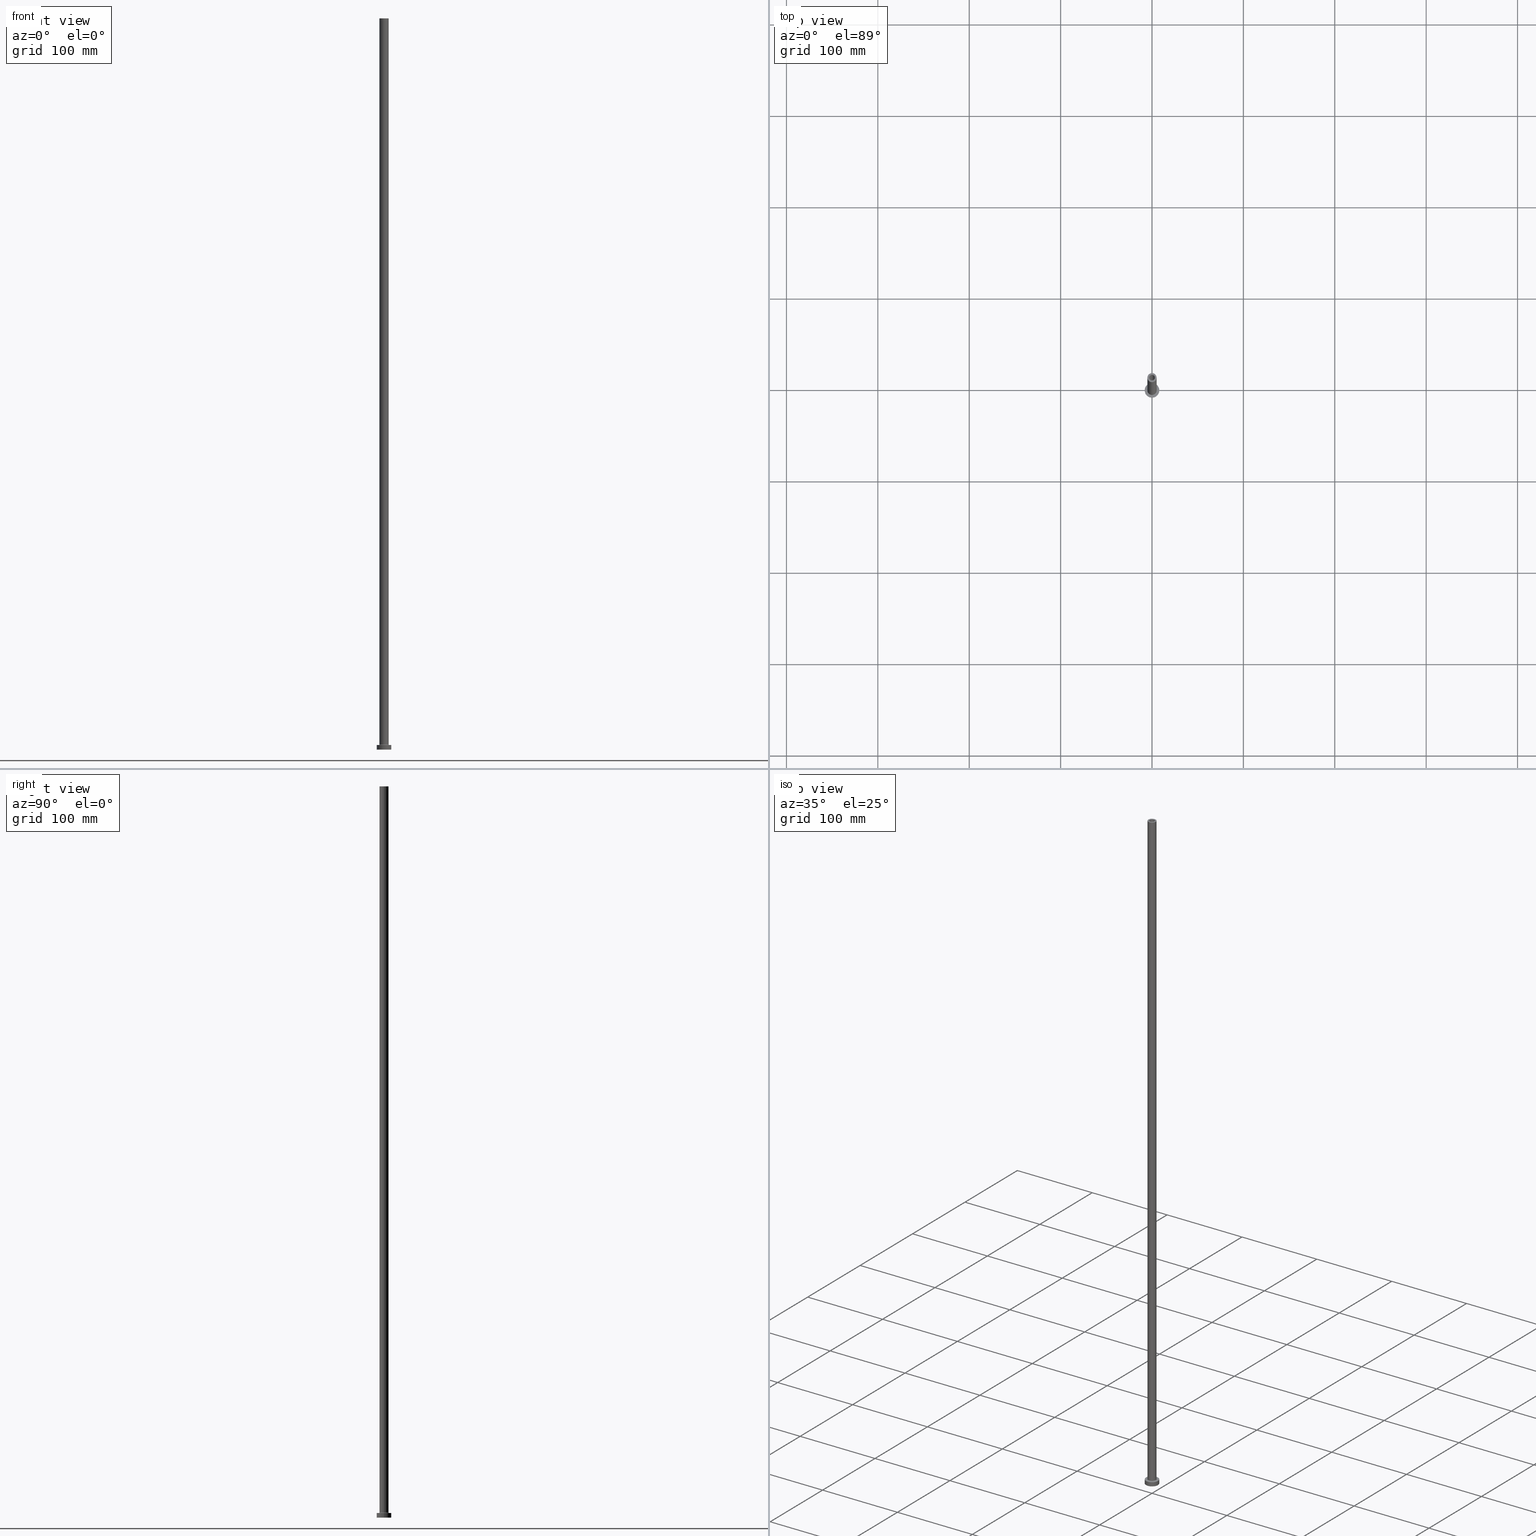
[diagram: canonical four-view strip — front | top / right | iso, engineering-drawing reading convention]
A machine part, canonical four-view strip (front | top / right | iso — engineering-drawing reading convention). The complete STEP part file that produces these views, byte-faithful:
ISO-10303-21;
HEADER;
FILE_DESCRIPTION (( 'STEP AP203' ),
    '1' );
FILE_NAME ('4e2d.STEP',
    '2023-02-13T14:28:47',
    ( '' ),
    ( '' ),
    'SwSTEP 2.0',
    'SolidWorks 2019',
    '' );
FILE_SCHEMA (( 'CONFIG_CONTROL_DESIGN' ));
ENDSEC;

DATA;
#1 = EDGE_LOOP ( 'NONE', ( #440, #327, #392, #47 ) ) ;
#2 = ORIENTED_EDGE ( 'NONE', *, *, #454, .T. ) ;
#3 = MANIFOLD_SOLID_BREP ( 'Odebrat vysunut�m4', #380 ) ;
#4 = ORIENTED_EDGE ( 'NONE', *, *, #51, .F. ) ;
#5 = ORIENTED_EDGE ( 'NONE', *, *, #210, .T. ) ;
#6 = ADVANCED_FACE ( 'NONE', ( #340 ), #17, .T. ) ;
#7 = ORIENTED_EDGE ( 'NONE', *, *, #133, .F. ) ;
#8 = CC_DESIGN_PERSON_AND_ORGANIZATION_ASSIGNMENT ( #298, #416, ( #181 ) ) ;
#9 = PERSON_AND_ORGANIZATION ( #243, #387 ) ;
#10 = DIRECTION ( 'NONE',  ( 1.000000000000000000, 0.000000000000000000, 0.000000000000000000 ) ) ;
#11 = VECTOR ( 'NONE', #412, 1000.000000000000000 ) ;
#12 = APPROVAL_PERSON_ORGANIZATION ( #169, #436, #445 ) ;
#13 = AXIS2_PLACEMENT_3D ( 'NONE', #376, #342, #25 ) ;
#14 = COORDINATED_UNIVERSAL_TIME_OFFSET ( 1, 0, .AHEAD. ) ;
#15 = ADVANCED_FACE ( 'NONE', ( #331 ), #23, .F. ) ;
#16 = DIRECTION ( 'NONE',  ( -1.000000000000000000, 0.000000000000000000, 0.000000000000000000 ) ) ;
#17 = CYLINDRICAL_SURFACE ( 'NONE', #224, 5.000000000000000000 ) ;
#18 = APPROVAL_DATE_TIME ( #371, #73 ) ;
#19 = DESIGN_CONTEXT ( 'detailed design', #21, 'design' ) ;
#20 = DIRECTION ( 'NONE',  ( 0.000000000000000000, 0.000000000000000000, -1.000000000000000000 ) ) ;
#21 = APPLICATION_CONTEXT ( 'configuration controlled 3d designs of mechanical parts and assemblies' ) ;
#22 = TOROIDAL_SURFACE ( 'NONE', #279, 5.500000000000000000, 0.5000000000000000000 ) ;
#23 = CYLINDRICAL_SURFACE ( 'NONE', #171, 3.250000000000000444 ) ;
#24 = CALENDAR_DATE ( 2023, 13, 2 ) ;
#25 = DIRECTION ( 'NONE',  ( 1.000000000000000000, 0.000000000000000000, 0.000000000000000000 ) ) ;
#26 = CARTESIAN_POINT ( 'NONE',  ( 0.000000000000000000, 0.000000000000000000, 5.000000000000000000 ) ) ;
#27 = DATE_TIME_ROLE ( 'classification_date' ) ;
#28 = CARTESIAN_POINT ( 'NONE',  ( 0.000000000000000000, 0.000000000000000000, 5.000000000000000000 ) ) ;
#29 = DIRECTION ( 'NONE',  ( 0.000000000000000000, 0.000000000000000000, -1.000000000000000000 ) ) ;
#30 = AXIS2_PLACEMENT_3D ( 'NONE', #222, #359, #191 ) ;
#31 = FACE_OUTER_BOUND ( 'NONE', #87, .T. ) ;
#32 = CC_DESIGN_DATE_AND_TIME_ASSIGNMENT ( #134, #27, ( #271 ) ) ;
#33 = CARTESIAN_POINT ( 'NONE',  ( 0.000000000000000000, 0.000000000000000000, 800.0000000000000000 ) ) ;
#34 = ADVANCED_FACE ( 'NONE', ( #177 ), #22, .F. ) ;
#35 = VECTOR ( 'NONE', #104, 1000.000000000000000 ) ;
#36 = CC_DESIGN_SECURITY_CLASSIFICATION ( #271, ( #181 ) ) ;
#37 = FACE_BOUND ( 'NONE', #118, .T. ) ;
#38 =( GEOMETRIC_REPRESENTATION_CONTEXT ( 3 ) GLOBAL_UNCERTAINTY_ASSIGNED_CONTEXT ( ( #329 ) ) GLOBAL_UNIT_ASSIGNED_CONTEXT ( ( #459, #72, #44 ) ) REPRESENTATION_CONTEXT ( 'NONE', 'WORKASPACE' ) );
#39 = TOROIDAL_SURFACE ( 'NONE', #328, 5.500000000000000000, 0.5000000000000000000 ) ;
#40 = ORIENTED_EDGE ( 'NONE', *, *, #201, .F. ) ;
#41 = VERTEX_POINT ( 'NONE', #382 ) ;
#42 = DIRECTION ( 'NONE',  ( -0.000000000000000000, -0.000000000000000000, -1.000000000000000000 ) ) ;
#43 = ORIENTED_EDGE ( 'NONE', *, *, #210, .F. ) ;
#44 =( NAMED_UNIT ( * ) SI_UNIT ( $, .STERADIAN. ) SOLID_ANGLE_UNIT ( ) );
#45 = PERSON_AND_ORGANIZATION_ROLE ( 'design_owner' ) ;
#46 = ORIENTED_EDGE ( 'NONE', *, *, #193, .F. ) ;
#47 = ORIENTED_EDGE ( 'NONE', *, *, #174, .T. ) ;
#48 = DATE_AND_TIME ( #92, #374 ) ;
#49 = CARTESIAN_POINT ( 'NONE',  ( -5.000000000000000000, 0.000000000000000000, 5.499999999999949374 ) ) ;
#50 = EDGE_LOOP ( 'NONE', ( #83, #252 ) ) ;
#51 = EDGE_CURVE ( 'NONE', #41, #360, #275, .T. ) ;
#52 = CIRCLE ( 'NONE', #89, 3.250000000000000444 ) ;
#53 = ORIENTED_EDGE ( 'NONE', *, *, #335, .F. ) ;
#54 = FACE_OUTER_BOUND ( 'NONE', #254, .T. ) ;
#55 = FACE_OUTER_BOUND ( 'NONE', #95, .T. ) ;
#56 = EDGE_LOOP ( 'NONE', ( #192, #269, #225, #219 ) ) ;
#57 = CARTESIAN_POINT ( 'NONE',  ( 3.250000000000000444, 3.980102097228898231E-16, 0.000000000000000000 ) ) ;
#58 = PERSON_AND_ORGANIZATION_ROLE ( 'classification_officer' ) ;
#59 = EDGE_CURVE ( 'NONE', #150, #152, #341, .T. ) ;
#60 = DIRECTION ( 'NONE',  ( -1.000000000000000000, 0.000000000000000000, 0.000000000000000000 ) ) ;
#61 = LOCAL_TIME ( 15, 28, 47.00000000000000000, #14 ) ;
#62 = DIRECTION ( 'NONE',  ( -1.000000000000000000, 0.000000000000000000, 0.000000000000000000 ) ) ;
#63 = AXIS2_PLACEMENT_3D ( 'NONE', #299, #407, #199 ) ;
#64 = DIRECTION ( 'NONE',  ( 0.000000000000000000, 0.000000000000000000, 1.000000000000000000 ) ) ;
#65 = DIRECTION ( 'NONE',  ( 0.000000000000000000, -1.000000000000000000, 0.000000000000000000 ) ) ;
#66 = FACE_OUTER_BOUND ( 'NONE', #354, .T. ) ;
#67 = DIRECTION ( 'NONE',  ( 1.000000000000000000, 0.000000000000000000, 0.000000000000000000 ) ) ;
#68 = DIRECTION ( 'NONE',  ( 1.000000000000000000, 0.000000000000000000, 0.000000000000000000 ) ) ;
#69 = CARTESIAN_POINT ( 'NONE',  ( 0.000000000000000000, 0.000000000000000000, 800.0000000000000000 ) ) ;
#70 = CARTESIAN_POINT ( 'NONE',  ( 5.000000000000000000, 6.123233995736766282E-16, 800.0000000000000000 ) ) ;
#71 = CARTESIAN_POINT ( 'NONE',  ( -3.250000000000000444, 0.000000000000000000, 0.000000000000000000 ) ) ;
#72 =( NAMED_UNIT ( * ) PLANE_ANGLE_UNIT ( ) SI_UNIT ( $, .RADIAN. ) );
#73 = APPROVAL ( #292, 'NEUR�EN�' ) ;
#74 = CIRCLE ( 'NONE', #100, 5.000000000000000000 ) ;
#75 = CARTESIAN_POINT ( 'NONE',  ( 8.000000000000000000, 9.797174393178825657E-16, 5.000000000000000000 ) ) ;
#76 = DIRECTION ( 'NONE',  ( 0.000000000000000000, 0.000000000000000000, 1.000000000000000000 ) ) ;
#77 = CARTESIAN_POINT ( 'NONE',  ( 0.000000000000000000, 0.000000000000000000, 5.000000000000000000 ) ) ;
#78 = EDGE_CURVE ( 'NONE', #356, #282, #439, .T. ) ;
#79 = VECTOR ( 'NONE', #251, 1000.000000000000000 ) ;
#80 = CIRCLE ( 'NONE', #429, 5.000000000000000000 ) ;
#81 = VERTEX_POINT ( 'NONE', #71 ) ;
#82 = MECHANICAL_CONTEXT ( 'NONE', #365, 'mechanical' ) ;
#83 = ORIENTED_EDGE ( 'NONE', *, *, #379, .F. ) ;
#84 = CARTESIAN_POINT ( 'NONE',  ( -3.100000000000000089, 0.000000000000000000, 800.0000000000000000 ) ) ;
#85 = VERTEX_POINT ( 'NONE', #272 ) ;
#86 = EDGE_CURVE ( 'NONE', #406, #170, #259, .T. ) ;
#87 = EDGE_LOOP ( 'NONE', ( #250, #258, #148, #185 ) ) ;
#88 = LOCAL_TIME ( 15, 28, 47.00000000000000000, #265 ) ;
#89 = AXIS2_PLACEMENT_3D ( 'NONE', #257, #96, #129 ) ;
#90 = VERTEX_POINT ( 'NONE', #240 ) ;
#91 = VECTOR ( 'NONE', #448, 1000.000000000000000 ) ;
#92 = CALENDAR_DATE ( 2023, 13, 2 ) ;
#93 = CARTESIAN_POINT ( 'NONE',  ( 0.000000000000000000, 0.000000000000000000, 800.0000000000000000 ) ) ;
#94 = EDGE_CURVE ( 'NONE', #217, #155, #183, .T. ) ;
#95 = EDGE_LOOP ( 'NONE', ( #390, #322 ) ) ;
#96 = DIRECTION ( 'NONE',  ( -0.000000000000000000, -0.000000000000000000, -1.000000000000000000 ) ) ;
#97 = DIRECTION ( 'NONE',  ( 0.000000000000000000, 0.000000000000000000, 1.000000000000000000 ) ) ;
#98 = VECTOR ( 'NONE', #244, 1000.000000000000000 ) ;
#99 = EDGE_LOOP ( 'NONE', ( #43, #233, #290, #136 ) ) ;
#100 = AXIS2_PLACEMENT_3D ( 'NONE', #33, #179, #309 ) ;
#101 = CARTESIAN_POINT ( 'NONE',  ( -3.100000000000000089, 0.000000000000000000, 800.0000000000000000 ) ) ;
#102 = LINE ( 'NONE', #361, #105 ) ;
#103 = CARTESIAN_POINT ( 'NONE',  ( 0.000000000000000000, 0.000000000000000000, 0.000000000000000000 ) ) ;
#104 = DIRECTION ( 'NONE',  ( -0.000000000000000000, -0.000000000000000000, -1.000000000000000000 ) ) ;
#105 = VECTOR ( 'NONE', #20, 1000.000000000000000 ) ;
#106 = FACE_OUTER_BOUND ( 'NONE', #153, .T. ) ;
#107 = SECURITY_CLASSIFICATION_LEVEL ( 'unclassified' ) ;
#108 = APPROVAL_PERSON_ORGANIZATION ( #154, #245, #189 ) ;
#109 = CARTESIAN_POINT ( 'NONE',  ( 0.000000000000000000, 0.000000000000000000, 5.499999999999949374 ) ) ;
#110 = ADVANCED_FACE ( 'NONE', ( #426 ), #39, .F. ) ;
#111 = VERTEX_POINT ( 'NONE', #351 ) ;
#112 = EDGE_CURVE ( 'NONE', #155, #217, #451, .T. ) ;
#113 = CARTESIAN_POINT ( 'NONE',  ( 5.500000000000000000, 0.000000000000000000, 4.999999999999975131 ) ) ;
#114 = CARTESIAN_POINT ( 'NONE',  ( 5.000000000000000000, 6.123233995736766282E-16, 800.0000000000000000 ) ) ;
#115 = CARTESIAN_POINT ( 'NONE',  ( 3.100000000000000089, 3.796405077356794918E-16, 800.0000000000000000 ) ) ;
#116 = AXIS2_PLACEMENT_3D ( 'NONE', #172, #326, #10 ) ;
#117 = LINE ( 'NONE', #84, #79 ) ;
#118 = EDGE_LOOP ( 'NONE', ( #2, #167 ) ) ;
#119 = ORIENTED_EDGE ( 'NONE', *, *, #112, .T. ) ;
#120 = ORIENTED_EDGE ( 'NONE', *, *, #261, .T. ) ;
#121 = DIRECTION ( 'NONE',  ( 0.000000000000000000, 0.000000000000000000, 1.000000000000000000 ) ) ;
#122 = CC_DESIGN_APPROVAL ( #245, ( #456 ) ) ;
#123 = EDGE_CURVE ( 'NONE', #287, #126, #74, .T. ) ;
#124 = LOCAL_TIME ( 15, 28, 47.00000000000000000, #131 ) ;
#125 = CIRCLE ( 'NONE', #13, 8.000000000000000000 ) ;
#126 = VERTEX_POINT ( 'NONE', #146 ) ;
#127 = AXIS2_PLACEMENT_3D ( 'NONE', #422, #304, #209 ) ;
#128 = CC_DESIGN_PERSON_AND_ORGANIZATION_ASSIGNMENT ( #366, #441, ( #181 ) ) ;
#129 = DIRECTION ( 'NONE',  ( 1.000000000000000000, 0.000000000000000000, 0.000000000000000000 ) ) ;
#130 = DIRECTION ( 'NONE',  ( -0.000000000000000000, -0.000000000000000000, -1.000000000000000000 ) ) ;
#131 = COORDINATED_UNIVERSAL_TIME_OFFSET ( 1, 0, .AHEAD. ) ;
#132 = DIRECTION ( 'NONE',  ( -0.000000000000000000, -0.000000000000000000, -1.000000000000000000 ) ) ;
#133 = EDGE_CURVE ( 'NONE', #287, #356, #455, .T. ) ;
#134 = DATE_AND_TIME ( #411, #124 ) ;
#135 = DIRECTION ( 'NONE',  ( 0.000000000000000000, 0.000000000000000000, 1.000000000000000000 ) ) ;
#136 = ORIENTED_EDGE ( 'NONE', *, *, #78, .F. ) ;
#137 = DIRECTION ( 'NONE',  ( 1.000000000000000000, 0.000000000000000000, 0.000000000000000000 ) ) ;
#138 = EDGE_CURVE ( 'NONE', #217, #111, #280, .T. ) ;
#139 = CARTESIAN_POINT ( 'NONE',  ( -5.500000000000000000, 6.735557395310442023E-16, 5.499999999999949374 ) ) ;
#140 = AXIS2_PLACEMENT_3D ( 'NONE', #332, #270, #231 ) ;
#141 = CC_DESIGN_APPROVAL ( #436, ( #271 ) ) ;
#142 = AXIS2_PLACEMENT_3D ( 'NONE', #188, #121, #318 ) ;
#143 = CARTESIAN_POINT ( 'NONE',  ( 0.000000000000000000, 0.000000000000000000, 5.499999999999949374 ) ) ;
#144 = ADVANCED_FACE ( 'NONE', ( #204 ), #343, .T. ) ;
#145 = AXIS2_PLACEMENT_3D ( 'NONE', #276, #203, #67 ) ;
#146 = CARTESIAN_POINT ( 'NONE',  ( -5.000000000000000000, 0.000000000000000000, 800.0000000000000000 ) ) ;
#147 = AXIS2_PLACEMENT_3D ( 'NONE', #139, #306, #383 ) ;
#148 = ORIENTED_EDGE ( 'NONE', *, *, #201, .T. ) ;
#149 = ORIENTED_EDGE ( 'NONE', *, *, #261, .F. ) ;
#150 = VERTEX_POINT ( 'NONE', #49 ) ;
#151 = EDGE_CURVE ( 'NONE', #170, #406, #364, .T. ) ;
#152 = VERTEX_POINT ( 'NONE', #196 ) ;
#153 = EDGE_LOOP ( 'NONE', ( #173, #186, #190, #4 ) ) ;
#154 = PERSON_AND_ORGANIZATION ( #243, #387 ) ;
#155 = VERTEX_POINT ( 'NONE', #101 ) ;
#156 = PERSON_AND_ORGANIZATION_ROLE ( 'creator' ) ;
#157 = APPLICATION_PROTOCOL_DEFINITION ( 'international standard', 'config_control_design', 1994, #21 ) ;
#158 = AXIS2_PLACEMENT_3D ( 'NONE', #263, #369, #367 ) ;
#159 = FACE_OUTER_BOUND ( 'NONE', #316, .T. ) ;
#160 = CIRCLE ( 'NONE', #213, 3.250000000000000444 ) ;
#161 = APPROVAL_DATE_TIME ( #319, #245 ) ;
#162 = DIRECTION ( 'NONE',  ( 0.000000000000000000, 0.000000000000000000, -1.000000000000000000 ) ) ;
#163 = CARTESIAN_POINT ( 'NONE',  ( 0.000000000000000000, 0.000000000000000000, 800.0000000000000000 ) ) ;
#164 = APPROVAL_DATE_TIME ( #301, #436 ) ;
#165 = CARTESIAN_POINT ( 'NONE',  ( 0.000000000000000000, 0.000000000000000000, 800.0000000000000000 ) ) ;
#166 = EDGE_CURVE ( 'NONE', #85, #360, #437, .T. ) ;
#167 = ORIENTED_EDGE ( 'NONE', *, *, #293, .T. ) ;
#168 = DIRECTION ( 'NONE',  ( -1.000000000000000000, 0.000000000000000000, 0.000000000000000000 ) ) ;
#169 = PERSON_AND_ORGANIZATION ( #243, #387 ) ;
#170 = VERTEX_POINT ( 'NONE', #302 ) ;
#171 = AXIS2_PLACEMENT_3D ( 'NONE', #237, #378, #420 ) ;
#172 = CARTESIAN_POINT ( 'NONE',  ( 0.000000000000000000, 0.000000000000000000, 0.000000000000000000 ) ) ;
#173 = ORIENTED_EDGE ( 'NONE', *, *, #345, .F. ) ;
#174 = EDGE_CURVE ( 'NONE', #81, #438, #160, .T. ) ;
#175 = DIRECTION ( 'NONE',  ( 0.000000000000000000, 0.000000000000000000, 1.000000000000000000 ) ) ;
#176 = DIRECTION ( 'NONE',  ( 1.000000000000000000, 0.000000000000000000, 0.000000000000000000 ) ) ;
#177 = FACE_OUTER_BOUND ( 'NONE', #56, .T. ) ;
#178 = VECTOR ( 'NONE', #162, 1000.000000000000000 ) ;
#179 = DIRECTION ( 'NONE',  ( 0.000000000000000000, 0.000000000000000000, 1.000000000000000000 ) ) ;
#180 = EDGE_CURVE ( 'NONE', #170, #81, #266, .T. ) ;
#181 = PRODUCT_DEFINITION_FORMATION_WITH_SPECIFIED_SOURCE ( 'LIBOVOLN�', '', #206, .NOT_KNOWN. ) ;
#182 = AXIS2_PLACEMENT_3D ( 'NONE', #346, #284, #313 ) ;
#183 = CIRCLE ( 'NONE', #239, 3.100000000000000089 ) ;
#184 = ADVANCED_FACE ( 'NONE', ( #159 ), #232, .F. ) ;
#185 = ORIENTED_EDGE ( 'NONE', *, *, #180, .F. ) ;
#186 = ORIENTED_EDGE ( 'NONE', *, *, #300, .T. ) ;
#187 = ORIENTED_EDGE ( 'NONE', *, *, #51, .T. ) ;
#188 = CARTESIAN_POINT ( 'NONE',  ( 0.000000000000000000, 0.000000000000000000, 0.000000000000000000 ) ) ;
#189 = APPROVAL_ROLE ( '' ) ;
#190 = ORIENTED_EDGE ( 'NONE', *, *, #166, .T. ) ;
#191 = DIRECTION ( 'NONE',  ( 1.000000000000000000, 0.000000000000000000, -0.000000000000000000 ) ) ;
#192 = ORIENTED_EDGE ( 'NONE', *, *, #59, .F. ) ;
#193 = EDGE_CURVE ( 'NONE', #303, #111, #348, .T. ) ;
#194 = DATE_TIME_ROLE ( 'creation_date' ) ;
#195 = AXIS2_PLACEMENT_3D ( 'NONE', #295, #443, #363 ) ;
#196 = CARTESIAN_POINT ( 'NONE',  ( -5.500000000000000000, 6.735557395310442023E-16, 4.999999999999975131 ) ) ;
#197 = CARTESIAN_POINT ( 'NONE',  ( 3.100000000000000089, 3.796405077356794918E-16, 800.0000000000000000 ) ) ;
#198 = CYLINDRICAL_SURFACE ( 'NONE', #140, 5.000000000000000000 ) ;
#199 = DIRECTION ( 'NONE',  ( 1.000000000000000000, 0.000000000000000000, -0.000000000000000000 ) ) ;
#200 = DIRECTION ( 'NONE',  ( 1.000000000000000000, 0.000000000000000000, 0.000000000000000000 ) ) ;
#201 = EDGE_CURVE ( 'NONE', #438, #81, #52, .T. ) ;
#202 = FACE_BOUND ( 'NONE', #428, .T. ) ;
#203 = DIRECTION ( 'NONE',  ( 0.000000000000000000, 0.000000000000000000, 1.000000000000000000 ) ) ;
#204 = FACE_OUTER_BOUND ( 'NONE', #221, .T. ) ;
#205 = PLANE ( 'NONE',  #63 ) ;
#206 = PRODUCT ( '4e2d', '4e2d', '', ( #82 ) ) ;
#207 = DIRECTION ( 'NONE',  ( 0.000000000000000000, 0.000000000000000000, 1.000000000000000000 ) ) ;
#208 = PLANE ( 'NONE',  #182 ) ;
#209 = DIRECTION ( 'NONE',  ( 1.000000000000000000, 0.000000000000000000, 0.000000000000000000 ) ) ;
#210 = EDGE_CURVE ( 'NONE', #150, #356, #80, .T. ) ;
#211 = CARTESIAN_POINT ( 'NONE',  ( -8.000000000000000000, 0.000000000000000000, 5.000000000000000000 ) ) ;
#212 = ORIENTED_EDGE ( 'NONE', *, *, #174, .F. ) ;
#213 = AXIS2_PLACEMENT_3D ( 'NONE', #103, #132, #200 ) ;
#214 = FACE_BOUND ( 'NONE', #357, .T. ) ;
#215 = EDGE_CURVE ( 'NONE', #356, #150, #246, .T. ) ;
#216 = ORIENTED_EDGE ( 'NONE', *, *, #300, .F. ) ;
#217 = VERTEX_POINT ( 'NONE', #197 ) ;
#218 = FACE_OUTER_BOUND ( 'NONE', #432, .T. ) ;
#219 = ORIENTED_EDGE ( 'NONE', *, *, #293, .F. ) ;
#220 = PERSON_AND_ORGANIZATION ( #243, #387 ) ;
#221 = EDGE_LOOP ( 'NONE', ( #216, #53, #187, #352 ) ) ;
#222 = CARTESIAN_POINT ( 'NONE',  ( 0.000000000000000000, 0.000000000000000000, 5.000000000000000000 ) ) ;
#223 = ORIENTED_EDGE ( 'NONE', *, *, #112, .F. ) ;
#224 = AXIS2_PLACEMENT_3D ( 'NONE', #163, #130, #60 ) ;
#225 = ORIENTED_EDGE ( 'NONE', *, *, #78, .T. ) ;
#226 = ORIENTED_EDGE ( 'NONE', *, *, #253, .T. ) ;
#227 = ADVANCED_FACE ( 'NONE', ( #330, #55 ), #296, .T. ) ;
#228 = ORIENTED_EDGE ( 'NONE', *, *, #355, .T. ) ;
#229 = AXIS2_PLACEMENT_3D ( 'NONE', #405, #97, #408 ) ;
#230 = DIRECTION ( 'NONE',  ( 0.000000000000000000, 0.000000000000000000, 1.000000000000000000 ) ) ;
#231 = DIRECTION ( 'NONE',  ( -1.000000000000000000, 0.000000000000000000, 0.000000000000000000 ) ) ;
#232 = CYLINDRICAL_SURFACE ( 'NONE', #235, 3.100000000000000089 ) ;
#233 = ORIENTED_EDGE ( 'NONE', *, *, #59, .T. ) ;
#234 = DIRECTION ( 'NONE',  ( 1.000000000000000000, 0.000000000000000000, 0.000000000000000000 ) ) ;
#235 = AXIS2_PLACEMENT_3D ( 'NONE', #165, #447, #16 ) ;
#236 = CYLINDRICAL_SURFACE ( 'NONE', #458, 3.250000000000000444 ) ;
#237 = CARTESIAN_POINT ( 'NONE',  ( 0.000000000000000000, 0.000000000000000000, 764.1923881554251921 ) ) ;
#238 = CYLINDRICAL_SURFACE ( 'NONE', #310, 8.000000000000000000 ) ;
#239 = AXIS2_PLACEMENT_3D ( 'NONE', #308, #350, #457 ) ;
#240 = CARTESIAN_POINT ( 'NONE',  ( 8.000000000000000000, 9.797174393178825657E-16, 5.000000000000000000 ) ) ;
#241 = CYLINDRICAL_SURFACE ( 'NONE', #256, 3.100000000000000089 ) ;
#242 = PRODUCT_DEFINITION_SHAPE ( 'NONE', 'NONE',  #456 ) ;
#243 = PERSON ( 'NEUR�EN�', 'NEUR�EN�', 'NEUR�EN�', ('NEUR�EN�'), ('NEUR�EN�'), ('NEUR�EN�') ) ;
#244 = DIRECTION ( 'NONE',  ( 0.000000000000000000, 0.000000000000000000, -1.000000000000000000 ) ) ;
#245 = APPROVAL ( #358, 'NEUR�EN�' ) ;
#246 = CIRCLE ( 'NONE', #158, 5.000000000000000000 ) ;
#247 = ORIENTED_EDGE ( 'NONE', *, *, #355, .F. ) ;
#248 = CIRCLE ( 'NONE', #325, 5.500000000000000000 ) ;
#249 = AXIS2_PLACEMENT_3D ( 'NONE', #277, #76, #68 ) ;
#250 = ORIENTED_EDGE ( 'NONE', *, *, #151, .T. ) ;
#251 = DIRECTION ( 'NONE',  ( 0.000000000000000000, 0.000000000000000000, -1.000000000000000000 ) ) ;
#252 = ORIENTED_EDGE ( 'NONE', *, *, #166, .F. ) ;
#253 = EDGE_CURVE ( 'NONE', #126, #150, #372, .T. ) ;
#254 = EDGE_LOOP ( 'NONE', ( #7, #283, #226, #5 ) ) ;
#255 = CARTESIAN_POINT ( 'NONE',  ( 0.000000000000000000, 0.000000000000000000, 0.000000000000000000 ) ) ;
#256 = AXIS2_PLACEMENT_3D ( 'NONE', #69, #414, #168 ) ;
#257 = CARTESIAN_POINT ( 'NONE',  ( 0.000000000000000000, 0.000000000000000000, 0.000000000000000000 ) ) ;
#258 = ORIENTED_EDGE ( 'NONE', *, *, #427, .T. ) ;
#259 = CIRCLE ( 'NONE', #127, 3.250000000000000444 ) ;
#260 = CARTESIAN_POINT ( 'NONE',  ( -3.250000000000000444, 0.000000000000000000, 764.1923881554251921 ) ) ;
#261 = EDGE_CURVE ( 'NONE', #111, #303, #324, .T. ) ;
#262 = APPROVAL_STATUS ( 'not_yet_approved' ) ;
#263 = CARTESIAN_POINT ( 'NONE',  ( 0.000000000000000000, 0.000000000000000000, 5.499999999999949374 ) ) ;
#264 = ORIENTED_EDGE ( 'NONE', *, *, #133, .T. ) ;
#265 = COORDINATED_UNIVERSAL_TIME_OFFSET ( 1, 0, .AHEAD. ) ;
#266 = LINE ( 'NONE', #260, #178 ) ;
#267 = SHAPE_DEFINITION_REPRESENTATION ( #242, #347 ) ;
#268 = DIRECTION ( 'NONE',  ( 1.000000000000000000, 0.000000000000000000, -0.000000000000000000 ) ) ;
#269 = ORIENTED_EDGE ( 'NONE', *, *, #215, .F. ) ;
#270 = DIRECTION ( 'NONE',  ( -0.000000000000000000, -0.000000000000000000, -1.000000000000000000 ) ) ;
#271 = SECURITY_CLASSIFICATION ( '', '', #107 ) ;
#272 = CARTESIAN_POINT ( 'NONE',  ( 8.000000000000000000, 9.797174393178825657E-16, 0.000000000000000000 ) ) ;
#273 = DIRECTION ( 'NONE',  ( 1.000000000000000000, 0.000000000000000000, 0.000000000000000000 ) ) ;
#274 = DIRECTION ( 'NONE',  ( 0.000000000000000000, 0.000000000000000000, -1.000000000000000000 ) ) ;
#275 = LINE ( 'NONE', #211, #91 ) ;
#276 = CARTESIAN_POINT ( 'NONE',  ( 0.000000000000000000, 0.000000000000000000, 755.0000000000000000 ) ) ;
#277 = CARTESIAN_POINT ( 'NONE',  ( 0.000000000000000000, 0.000000000000000000, 800.0000000000000000 ) ) ;
#278 = DIRECTION ( 'NONE',  ( -0.000000000000000000, -0.000000000000000000, -1.000000000000000000 ) ) ;
#279 = AXIS2_PLACEMENT_3D ( 'NONE', #109, #175, #311 ) ;
#280 = LINE ( 'NONE', #115, #98 ) ;
#281 = ORIENTED_EDGE ( 'NONE', *, *, #215, .T. ) ;
#282 = VERTEX_POINT ( 'NONE', #113 ) ;
#283 = ORIENTED_EDGE ( 'NONE', *, *, #421, .F. ) ;
#284 = DIRECTION ( 'NONE',  ( 0.000000000000000000, 0.000000000000000000, 1.000000000000000000 ) ) ;
#285 = CIRCLE ( 'NONE', #377, 8.000000000000000000 ) ;
#286 = EDGE_LOOP ( 'NONE', ( #433, #264, #281, #317 ) ) ;
#287 = VERTEX_POINT ( 'NONE', #70 ) ;
#288 = ORIENTED_EDGE ( 'NONE', *, *, #94, .T. ) ;
#289 = PERSON_AND_ORGANIZATION ( #243, #387 ) ;
#290 = ORIENTED_EDGE ( 'NONE', *, *, #454, .F. ) ;
#291 = AXIS2_PLACEMENT_3D ( 'NONE', #93, #446, #137 ) ;
#292 = APPROVAL_STATUS ( 'not_yet_approved' ) ;
#293 = EDGE_CURVE ( 'NONE', #152, #282, #415, .T. ) ;
#294 = CARTESIAN_POINT ( 'NONE',  ( 0.000000000000000000, 0.000000000000000000, 5.499999999999949374 ) ) ;
#295 = CARTESIAN_POINT ( 'NONE',  ( 0.000000000000000000, 0.000000000000000000, 755.0000000000000000 ) ) ;
#296 = PLANE ( 'NONE',  #339 ) ;
#297 = CARTESIAN_POINT ( 'NONE',  ( 3.250000000000000444, 3.980102097228898231E-16, 755.0000000000000000 ) ) ;
#298 = PERSON_AND_ORGANIZATION ( #243, #387 ) ;
#299 = CARTESIAN_POINT ( 'NONE',  ( 0.000000000000000000, 0.000000000000000000, 0.000000000000000000 ) ) ;
#300 = EDGE_CURVE ( 'NONE', #90, #85, #452, .T. ) ;
#301 = DATE_AND_TIME ( #375, #88 ) ;
#302 = CARTESIAN_POINT ( 'NONE',  ( -3.250000000000000444, 0.000000000000000000, 755.0000000000000000 ) ) ;
#303 = VERTEX_POINT ( 'NONE', #349 ) ;
#304 = DIRECTION ( 'NONE',  ( 0.000000000000000000, 0.000000000000000000, 1.000000000000000000 ) ) ;
#305 = AXIS2_PLACEMENT_3D ( 'NONE', #26, #42, #353 ) ;
#306 = DIRECTION ( 'NONE',  ( 1.224646799147353207E-16, 1.000000000000000000, -0.000000000000000000 ) ) ;
#307 = CARTESIAN_POINT ( 'NONE',  ( 0.000000000000000000, 0.000000000000000000, 764.1923881554251921 ) ) ;
#308 = CARTESIAN_POINT ( 'NONE',  ( 0.000000000000000000, 0.000000000000000000, 800.0000000000000000 ) ) ;
#309 = DIRECTION ( 'NONE',  ( 1.000000000000000000, 0.000000000000000000, 0.000000000000000000 ) ) ;
#310 = AXIS2_PLACEMENT_3D ( 'NONE', #321, #370, #62 ) ;
#311 = DIRECTION ( 'NONE',  ( 1.000000000000000000, 0.000000000000000000, 0.000000000000000000 ) ) ;
#312 = LOCAL_TIME ( 15, 28, 47.00000000000000000, #333 ) ;
#313 = DIRECTION ( 'NONE',  ( 1.000000000000000000, 0.000000000000000000, -0.000000000000000000 ) ) ;
#314 = AXIS2_PLACEMENT_3D ( 'NONE', #28, #449, #176 ) ;
#315 = PRODUCT_RELATED_PRODUCT_CATEGORY ( 'detail', '', ( #206 ) ) ;
#316 = EDGE_LOOP ( 'NONE', ( #320, #288, #228, #149 ) ) ;
#317 = ORIENTED_EDGE ( 'NONE', *, *, #253, .F. ) ;
#318 = DIRECTION ( 'NONE',  ( 1.000000000000000000, 0.000000000000000000, 0.000000000000000000 ) ) ;
#319 = DATE_AND_TIME ( #398, #61 ) ;
#320 = ORIENTED_EDGE ( 'NONE', *, *, #138, .F. ) ;
#321 = CARTESIAN_POINT ( 'NONE',  ( 0.000000000000000000, 0.000000000000000000, 5.000000000000000000 ) ) ;
#322 = ORIENTED_EDGE ( 'NONE', *, *, #123, .T. ) ;
#323 = ADVANCED_FACE ( 'NONE', ( #31 ), #236, .F. ) ;
#324 = CIRCLE ( 'NONE', #145, 3.100000000000000089 ) ;
#325 = AXIS2_PLACEMENT_3D ( 'NONE', #337, #410, #234 ) ;
#326 = DIRECTION ( 'NONE',  ( 0.000000000000000000, 0.000000000000000000, 1.000000000000000000 ) ) ;
#327 = ORIENTED_EDGE ( 'NONE', *, *, #86, .T. ) ;
#328 = AXIS2_PLACEMENT_3D ( 'NONE', #143, #207, #453 ) ;
#329 = UNCERTAINTY_MEASURE_WITH_UNIT (LENGTH_MEASURE( 1.000000000000000082E-05 ), #459, 'distance_accuracy_value', 'NONE');
#330 = FACE_BOUND ( 'NONE', #384, .T. ) ;
#331 = FACE_OUTER_BOUND ( 'NONE', #1, .T. ) ;
#332 = CARTESIAN_POINT ( 'NONE',  ( 0.000000000000000000, 0.000000000000000000, 800.0000000000000000 ) ) ;
#333 = COORDINATED_UNIVERSAL_TIME_OFFSET ( 1, 0, .AHEAD. ) ;
#334 = CARTESIAN_POINT ( 'NONE',  ( 0.000000000000000000, 0.000000000000000000, 800.0000000000000000 ) ) ;
#335 = EDGE_CURVE ( 'NONE', #41, #90, #285, .T. ) ;
#336 = ORIENTED_EDGE ( 'NONE', *, *, #86, .F. ) ;
#337 = CARTESIAN_POINT ( 'NONE',  ( 0.000000000000000000, 0.000000000000000000, 5.000000000000000000 ) ) ;
#338 = CARTESIAN_POINT ( 'NONE',  ( -5.000000000000000000, 0.000000000000000000, 800.0000000000000000 ) ) ;
#339 = AXIS2_PLACEMENT_3D ( 'NONE', #334, #135, #268 ) ;
#340 = FACE_OUTER_BOUND ( 'NONE', #286, .T. ) ;
#341 = CIRCLE ( 'NONE', #147, 0.5000000000000004441 ) ;
#342 = DIRECTION ( 'NONE',  ( 0.000000000000000000, 0.000000000000000000, 1.000000000000000000 ) ) ;
#343 = CYLINDRICAL_SURFACE ( 'NONE', #305, 8.000000000000000000 ) ;
#344 = DIRECTION ( 'NONE',  ( 0.000000000000000000, 0.000000000000000000, 1.000000000000000000 ) ) ;
#345 = EDGE_CURVE ( 'NONE', #90, #41, #125, .T. ) ;
#346 = CARTESIAN_POINT ( 'NONE',  ( 0.000000000000000000, 0.000000000000000000, 755.0000000000000000 ) ) ;
#347 = ADVANCED_BREP_SHAPE_REPRESENTATION ( '4e2d', ( #3, #142 ), #38 ) ;
#348 = CIRCLE ( 'NONE', #229, 3.100000000000000089 ) ;
#349 = CARTESIAN_POINT ( 'NONE',  ( -3.100000000000000089, 0.000000000000000000, 755.0000000000000000 ) ) ;
#350 = DIRECTION ( 'NONE',  ( 0.000000000000000000, 0.000000000000000000, 1.000000000000000000 ) ) ;
#351 = CARTESIAN_POINT ( 'NONE',  ( 3.100000000000000089, 3.796405077356794918E-16, 755.0000000000000000 ) ) ;
#352 = ORIENTED_EDGE ( 'NONE', *, *, #379, .T. ) ;
#353 = DIRECTION ( 'NONE',  ( -1.000000000000000000, 0.000000000000000000, 0.000000000000000000 ) ) ;
#354 = EDGE_LOOP ( 'NONE', ( #119, #400, #46, #247 ) ) ;
#355 = EDGE_CURVE ( 'NONE', #155, #303, #117, .T. ) ;
#356 = VERTEX_POINT ( 'NONE', #425 ) ;
#357 = EDGE_LOOP ( 'NONE', ( #397, #120 ) ) ;
#358 = APPROVAL_STATUS ( 'not_yet_approved' ) ;
#359 = DIRECTION ( 'NONE',  ( 0.000000000000000000, 0.000000000000000000, 1.000000000000000000 ) ) ;
#360 = VERTEX_POINT ( 'NONE', #434 ) ;
#361 = CARTESIAN_POINT ( 'NONE',  ( 3.250000000000000444, 3.980102097228898231E-16, 764.1923881554251921 ) ) ;
#362 = ORIENTED_EDGE ( 'NONE', *, *, #345, .T. ) ;
#363 = DIRECTION ( 'NONE',  ( 1.000000000000000000, 0.000000000000000000, 0.000000000000000000 ) ) ;
#364 = CIRCLE ( 'NONE', #195, 3.250000000000000444 ) ;
#365 = APPLICATION_CONTEXT ( 'configuration controlled 3d designs of mechanical parts and assemblies' ) ;
#366 = PERSON_AND_ORGANIZATION ( #243, #387 ) ;
#367 = DIRECTION ( 'NONE',  ( 1.000000000000000000, 0.000000000000000000, 0.000000000000000000 ) ) ;
#368 = ADVANCED_FACE ( 'NONE', ( #37, #218 ), #393, .T. ) ;
#369 = DIRECTION ( 'NONE',  ( 0.000000000000000000, 0.000000000000000000, 1.000000000000000000 ) ) ;
#370 = DIRECTION ( 'NONE',  ( -0.000000000000000000, -0.000000000000000000, -1.000000000000000000 ) ) ;
#371 = DATE_AND_TIME ( #24, #312 ) ;
#372 = LINE ( 'NONE', #338, #11 ) ;
#373 = CC_DESIGN_PERSON_AND_ORGANIZATION_ASSIGNMENT ( #442, #58, ( #271 ) ) ;
#374 = LOCAL_TIME ( 15, 28, 47.00000000000000000, #395 ) ;
#375 = CALENDAR_DATE ( 2023, 13, 2 ) ;
#376 = CARTESIAN_POINT ( 'NONE',  ( 0.000000000000000000, 0.000000000000000000, 5.000000000000000000 ) ) ;
#377 = AXIS2_PLACEMENT_3D ( 'NONE', #77, #64, #418 ) ;
#378 = DIRECTION ( 'NONE',  ( 0.000000000000000000, 0.000000000000000000, -1.000000000000000000 ) ) ;
#379 = EDGE_CURVE ( 'NONE', #360, #85, #417, .T. ) ;
#380 = CLOSED_SHELL ( 'NONE', ( #388, #323, #110, #6, #402, #144, #368, #413, #430, #227, #34, #15, #461, #184 ) ) ;
#381 = FACE_OUTER_BOUND ( 'NONE', #50, .T. ) ;
#382 = CARTESIAN_POINT ( 'NONE',  ( -8.000000000000000000, 0.000000000000000000, 5.000000000000000000 ) ) ;
#383 = DIRECTION ( 'NONE',  ( -1.000000000000000000, 1.224646799147351482E-16, 0.000000000000000000 ) ) ;
#384 = EDGE_LOOP ( 'NONE', ( #223, #431 ) ) ;
#385 = DIRECTION ( 'NONE',  ( -1.000000000000000000, 0.000000000000000000, 0.000000000000000000 ) ) ;
#386 = ORIENTED_EDGE ( 'NONE', *, *, #335, .T. ) ;
#387 = ORGANIZATION ( 'NEUR�EN�', 'NEUR�EN�', '' ) ;
#388 = ADVANCED_FACE ( 'NONE', ( #66 ), #241, .F. ) ;
#389 = VECTOR ( 'NONE', #278, 1000.000000000000000 ) ;
#390 = ORIENTED_EDGE ( 'NONE', *, *, #421, .T. ) ;
#391 = CC_DESIGN_PERSON_AND_ORGANIZATION_ASSIGNMENT ( #220, #45, ( #206 ) ) ;
#392 = ORIENTED_EDGE ( 'NONE', *, *, #180, .T. ) ;
#393 = PLANE ( 'NONE',  #30 ) ;
#394 = AXIS2_PLACEMENT_3D ( 'NONE', #255, #344, #273 ) ;
#395 = COORDINATED_UNIVERSAL_TIME_OFFSET ( 1, 0, .AHEAD. ) ;
#396 = CC_DESIGN_PERSON_AND_ORGANIZATION_ASSIGNMENT ( #289, #156, ( #456 ) ) ;
#397 = ORIENTED_EDGE ( 'NONE', *, *, #193, .T. ) ;
#398 = CALENDAR_DATE ( 2023, 13, 2 ) ;
#399 = DIRECTION ( 'NONE',  ( 1.000000000000000000, 0.000000000000000000, 0.000000000000000000 ) ) ;
#400 = ORIENTED_EDGE ( 'NONE', *, *, #138, .T. ) ;
#401 = APPROVAL_PERSON_ORGANIZATION ( #9, #73, #404 ) ;
#402 = ADVANCED_FACE ( 'NONE', ( #106 ), #238, .T. ) ;
#403 = CC_DESIGN_APPROVAL ( #73, ( #181 ) ) ;
#404 = APPROVAL_ROLE ( '' ) ;
#405 = CARTESIAN_POINT ( 'NONE',  ( 0.000000000000000000, 0.000000000000000000, 755.0000000000000000 ) ) ;
#406 = VERTEX_POINT ( 'NONE', #297 ) ;
#407 = DIRECTION ( 'NONE',  ( 0.000000000000000000, 0.000000000000000000, 1.000000000000000000 ) ) ;
#408 = DIRECTION ( 'NONE',  ( 1.000000000000000000, 0.000000000000000000, 0.000000000000000000 ) ) ;
#409 = EDGE_LOOP ( 'NONE', ( #424, #336 ) ) ;
#410 = DIRECTION ( 'NONE',  ( -0.000000000000000000, -0.000000000000000000, -1.000000000000000000 ) ) ;
#411 = CALENDAR_DATE ( 2023, 13, 2 ) ;
#412 = DIRECTION ( 'NONE',  ( -0.000000000000000000, -0.000000000000000000, -1.000000000000000000 ) ) ;
#413 = ADVANCED_FACE ( 'NONE', ( #202, #381 ), #205, .F. ) ;
#414 = DIRECTION ( 'NONE',  ( 0.000000000000000000, 0.000000000000000000, -1.000000000000000000 ) ) ;
#415 = CIRCLE ( 'NONE', #314, 5.500000000000000000 ) ;
#416 = PERSON_AND_ORGANIZATION_ROLE ( 'creator' ) ;
#417 = CIRCLE ( 'NONE', #394, 8.000000000000000000 ) ;
#418 = DIRECTION ( 'NONE',  ( 1.000000000000000000, 0.000000000000000000, 0.000000000000000000 ) ) ;
#419 = CARTESIAN_POINT ( 'NONE',  ( 5.500000000000000000, 0.000000000000000000, 5.499999999999949374 ) ) ;
#420 = DIRECTION ( 'NONE',  ( -1.000000000000000000, 0.000000000000000000, 0.000000000000000000 ) ) ;
#421 = EDGE_CURVE ( 'NONE', #126, #287, #450, .T. ) ;
#422 = CARTESIAN_POINT ( 'NONE',  ( 0.000000000000000000, 0.000000000000000000, 755.0000000000000000 ) ) ;
#423 = FACE_OUTER_BOUND ( 'NONE', #409, .T. ) ;
#424 = ORIENTED_EDGE ( 'NONE', *, *, #151, .F. ) ;
#425 = CARTESIAN_POINT ( 'NONE',  ( 5.000000000000000000, 6.123233995736766282E-16, 5.499999999999949374 ) ) ;
#426 = FACE_OUTER_BOUND ( 'NONE', #99, .T. ) ;
#427 = EDGE_CURVE ( 'NONE', #406, #438, #102, .T. ) ;
#428 = EDGE_LOOP ( 'NONE', ( #212, #40 ) ) ;
#429 = AXIS2_PLACEMENT_3D ( 'NONE', #294, #230, #399 ) ;
#430 = ADVANCED_FACE ( 'NONE', ( #54 ), #198, .T. ) ;
#431 = ORIENTED_EDGE ( 'NONE', *, *, #94, .F. ) ;
#432 = EDGE_LOOP ( 'NONE', ( #386, #362 ) ) ;
#433 = ORIENTED_EDGE ( 'NONE', *, *, #123, .F. ) ;
#434 = CARTESIAN_POINT ( 'NONE',  ( -8.000000000000000000, 0.000000000000000000, 0.000000000000000000 ) ) ;
#435 = APPLICATION_PROTOCOL_DEFINITION ( 'international standard', 'config_control_design', 1994, #365 ) ;
#436 = APPROVAL ( #262, 'NEUR�EN�' ) ;
#437 = CIRCLE ( 'NONE', #116, 8.000000000000000000 ) ;
#438 = VERTEX_POINT ( 'NONE', #57 ) ;
#439 = CIRCLE ( 'NONE', #460, 0.5000000000000004441 ) ;
#440 = ORIENTED_EDGE ( 'NONE', *, *, #427, .F. ) ;
#441 = PERSON_AND_ORGANIZATION_ROLE ( 'design_supplier' ) ;
#442 = PERSON_AND_ORGANIZATION ( #243, #387 ) ;
#443 = DIRECTION ( 'NONE',  ( 0.000000000000000000, 0.000000000000000000, 1.000000000000000000 ) ) ;
#444 = CC_DESIGN_DATE_AND_TIME_ASSIGNMENT ( #48, #194, ( #456 ) ) ;
#445 = APPROVAL_ROLE ( '' ) ;
#446 = DIRECTION ( 'NONE',  ( 0.000000000000000000, 0.000000000000000000, 1.000000000000000000 ) ) ;
#447 = DIRECTION ( 'NONE',  ( 0.000000000000000000, 0.000000000000000000, -1.000000000000000000 ) ) ;
#448 = DIRECTION ( 'NONE',  ( -0.000000000000000000, -0.000000000000000000, -1.000000000000000000 ) ) ;
#449 = DIRECTION ( 'NONE',  ( -0.000000000000000000, -0.000000000000000000, -1.000000000000000000 ) ) ;
#450 = CIRCLE ( 'NONE', #291, 5.000000000000000000 ) ;
#451 = CIRCLE ( 'NONE', #249, 3.100000000000000089 ) ;
#452 = LINE ( 'NONE', #75, #35 ) ;
#453 = DIRECTION ( 'NONE',  ( 1.000000000000000000, 0.000000000000000000, 0.000000000000000000 ) ) ;
#454 = EDGE_CURVE ( 'NONE', #282, #152, #248, .T. ) ;
#455 = LINE ( 'NONE', #114, #389 ) ;
#456 = PRODUCT_DEFINITION ( 'NEZN�M�', '', #181, #19 ) ;
#457 = DIRECTION ( 'NONE',  ( 1.000000000000000000, 0.000000000000000000, 0.000000000000000000 ) ) ;
#458 = AXIS2_PLACEMENT_3D ( 'NONE', #307, #274, #385 ) ;
#459 =( LENGTH_UNIT ( ) NAMED_UNIT ( * ) SI_UNIT ( .MILLI., .METRE. ) );
#460 = AXIS2_PLACEMENT_3D ( 'NONE', #419, #65, #29 ) ;
#461 = ADVANCED_FACE ( 'NONE', ( #214, #423 ), #208, .F. ) ;
ENDSEC;
END-ISO-10303-21;
